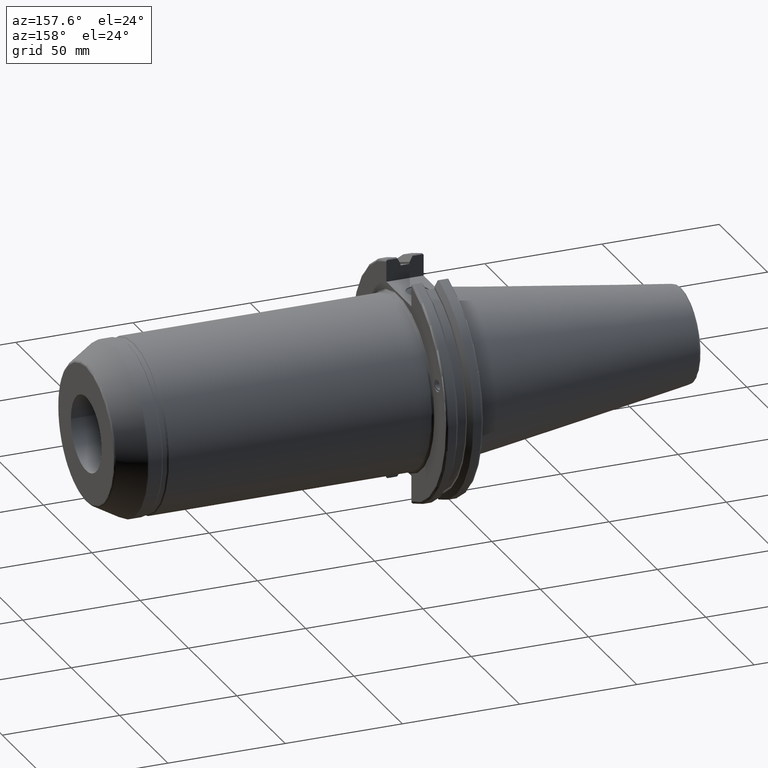
[diagram: clean part render]
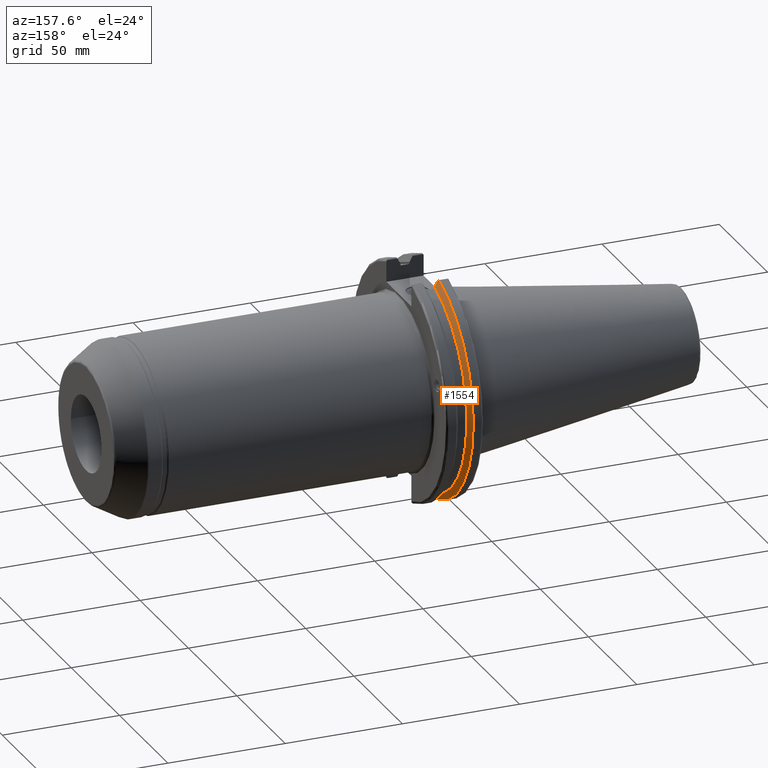
[diagram: same view with one face highlighted and labeled with its STEP entity id]
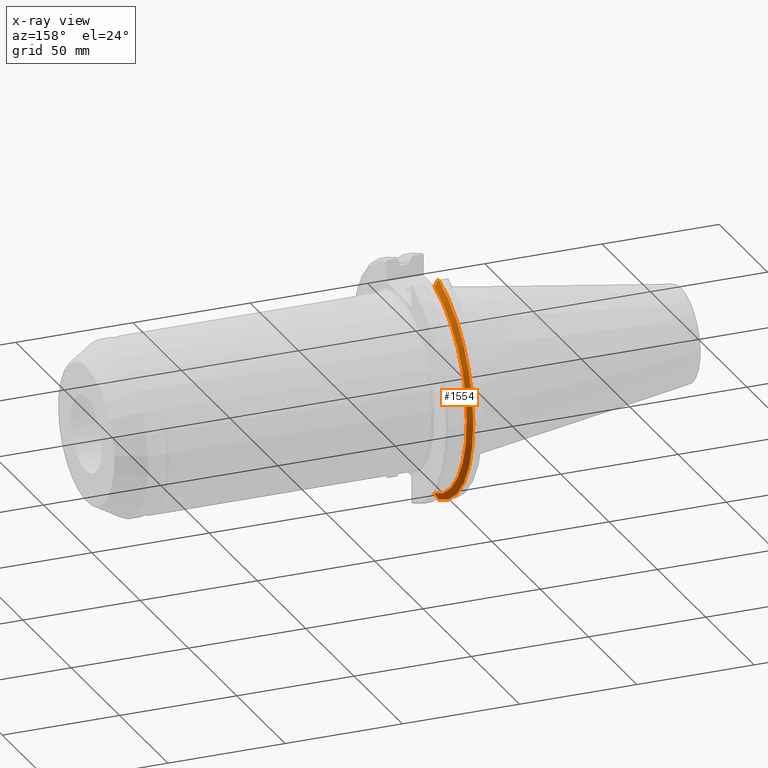
[diagram: x-ray of the same camera — body ghosted, the highlighted face saturated]
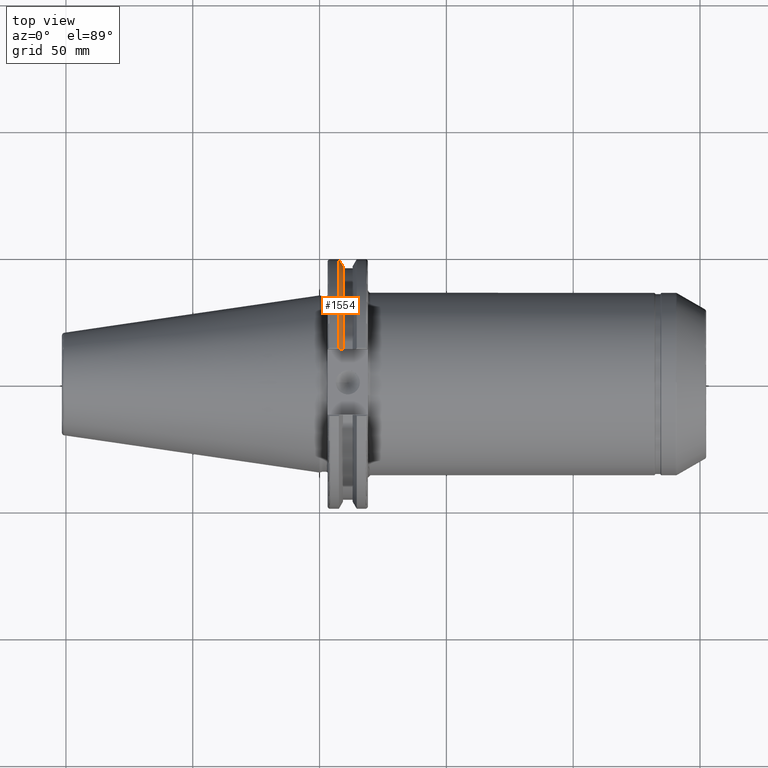
[diagram: same view with one face highlighted and labeled with its STEP entity id]
A machine part, auxiliary view. The second image highlights one B-rep face of the part: STEP entity #1554.
The next image is the same camera in x-ray: the body ghosted, the highlighted face saturated — about 0% of this face is hidden behind the body in this view.
A second angle (top view) of the same face is appended — the face is thin or edge-on in the first view.
In plain terms, the highlighted conical surface has half-angle 60 deg.
Its self-contained STEP definition (entity closure, byte-faithful):
#16=(
BOUNDED_CURVE()
B_SPLINE_CURVE(2,(#2723,#2724,#2725),.UNSPECIFIED.,.F.,.F.)
B_SPLINE_CURVE_WITH_KNOTS((3,3),(0.0558332664491378,0.331657177124507),
 .UNSPECIFIED.)
CURVE()
GEOMETRIC_REPRESENTATION_ITEM()
RATIONAL_B_SPLINE_CURVE((1.00012873637135,1.00038235575519,1.))
REPRESENTATION_ITEM('')
);
#23=(
BOUNDED_CURVE()
B_SPLINE_CURVE(2,(#2884,#2885,#2886),.UNSPECIFIED.,.F.,.F.)
B_SPLINE_CURVE_WITH_KNOTS((3,3),(0.,0.0648240472898323),.UNSPECIFIED.)
CURVE()
GEOMETRIC_REPRESENTATION_ITEM()
RATIONAL_B_SPLINE_CURVE((1.,1.00011477674853,1.00019140645976))
REPRESENTATION_ITEM('')
);
#24=(
BOUNDED_CURVE()
B_SPLINE_CURVE(2,(#2893,#2894,#2895),.UNSPECIFIED.,.F.,.F.)
B_SPLINE_CURVE_WITH_KNOTS((3,3),(0.325260944932483,0.390084992222205),
 .UNSPECIFIED.)
CURVE()
GEOMETRIC_REPRESENTATION_ITEM()
RATIONAL_B_SPLINE_CURVE((1.00019140645955,1.00011477674841,1.))
REPRESENTATION_ITEM('')
);
#27=(
BOUNDED_CURVE()
B_SPLINE_CURVE(2,(#2930,#2931,#2932),.UNSPECIFIED.,.F.,.F.)
B_SPLINE_CURVE_WITH_KNOTS((3,3),(0.,0.275823910674652),.UNSPECIFIED.)
CURVE()
GEOMETRIC_REPRESENTATION_ITEM()
RATIONAL_B_SPLINE_CURVE((1.,1.00038235573731,1.00012873636533))
REPRESENTATION_ITEM('')
);
#142=CONICAL_SURFACE('',#1764,47.8172386482472,1.0471975511966);
#219=FACE_OUTER_BOUND('',#323,.T.);
#323=EDGE_LOOP('',(#1365,#1366,#1367,#1368,#1369,#1370));
#579=CIRCLE('',#1744,49.2125);
#588=CIRCLE('',#1765,46.4219772964944);
#704=VERTEX_POINT('',#2720);
#705=VERTEX_POINT('',#2722);
#732=VERTEX_POINT('',#2881);
#733=VERTEX_POINT('',#2883);
#734=VERTEX_POINT('',#2889);
#743=VERTEX_POINT('',#2929);
#901=EDGE_CURVE('',#705,#704,#16,.T.);
#940=EDGE_CURVE('',#732,#733,#23,.T.);
#943=EDGE_CURVE('',#732,#734,#579,.T.);
#944=EDGE_CURVE('',#705,#734,#24,.T.);
#959=EDGE_CURVE('',#743,#733,#27,.T.);
#969=EDGE_CURVE('',#743,#704,#588,.T.);
#1365=ORIENTED_EDGE('',*,*,#940,.F.);
#1366=ORIENTED_EDGE('',*,*,#943,.T.);
#1367=ORIENTED_EDGE('',*,*,#944,.F.);
#1368=ORIENTED_EDGE('',*,*,#901,.T.);
#1369=ORIENTED_EDGE('',*,*,#969,.F.);
#1370=ORIENTED_EDGE('',*,*,#959,.T.);
#1554=ADVANCED_FACE('',(#219),#142,.T.);
#1744=AXIS2_PLACEMENT_3D('',#2891,#2162,#2163);
#1764=AXIS2_PLACEMENT_3D('',#2956,#2212,#2213);
#1765=AXIS2_PLACEMENT_3D('',#2957,#2214,#2215);
#2162=DIRECTION('center_axis',(1.,0.,0.));
#2163=DIRECTION('ref_axis',(0.,0.,-1.));
#2212=DIRECTION('center_axis',(-1.,0.,0.));
#2213=DIRECTION('ref_axis',(0.,1.,0.));
#2214=DIRECTION('center_axis',(1.,0.,0.));
#2215=DIRECTION('ref_axis',(0.,0.,-1.));
#2720=CARTESIAN_POINT('',(9.2191,12.95,44.5791147973604));
#2722=CARTESIAN_POINT('',(7.88638960562424,12.95,46.9780755322918));
#2723=CARTESIAN_POINT('Ctrl Pts',(7.88638960562424,12.95,46.9780755322918));
#2724=CARTESIAN_POINT('Ctrl Pts',(8.57020449055492,12.95,45.7494966802213));
#2725=CARTESIAN_POINT('Ctrl Pts',(9.2191,12.95,44.5791147973604));
#2881=CARTESIAN_POINT('',(7.60799096595127,13.4317035994433,-47.3440544806494));
#2883=CARTESIAN_POINT('',(7.88638960562424,12.95,-46.9780755322918));
#2884=CARTESIAN_POINT('Ctrl Pts',(7.60799096595127,13.4317035994433,-47.3440544806494));
#2885=CARTESIAN_POINT('Ctrl Pts',(7.74826896663818,13.1896660169966,-47.1601640966265));
#2886=CARTESIAN_POINT('Ctrl Pts',(7.88638960562424,12.95,-46.9780755322918));
#2889=CARTESIAN_POINT('',(7.60799096595127,13.4317035994433,47.3440544806494));
#2891=CARTESIAN_POINT('Origin',(7.60799096595127,0.,0.));
#2893=CARTESIAN_POINT('Ctrl Pts',(7.88638960562424,12.95,46.9780755322917));
#2894=CARTESIAN_POINT('Ctrl Pts',(7.74826896663821,13.1896660169966,47.1601640966264));
#2895=CARTESIAN_POINT('Ctrl Pts',(7.60799096595127,13.4317035994433,47.3440544806494));
#2929=CARTESIAN_POINT('',(9.2191,12.95,-44.5791147973604));
#2930=CARTESIAN_POINT('Ctrl Pts',(9.2191,12.95,-44.5791147973604));
#2931=CARTESIAN_POINT('Ctrl Pts',(8.57020449055827,12.95,-45.7494966802153));
#2932=CARTESIAN_POINT('Ctrl Pts',(7.88638960562424,12.95,-46.9780755322918));
#2956=CARTESIAN_POINT('Origin',(8.41354548297563,0.,0.));
#2957=CARTESIAN_POINT('Origin',(9.2191,0.,0.));